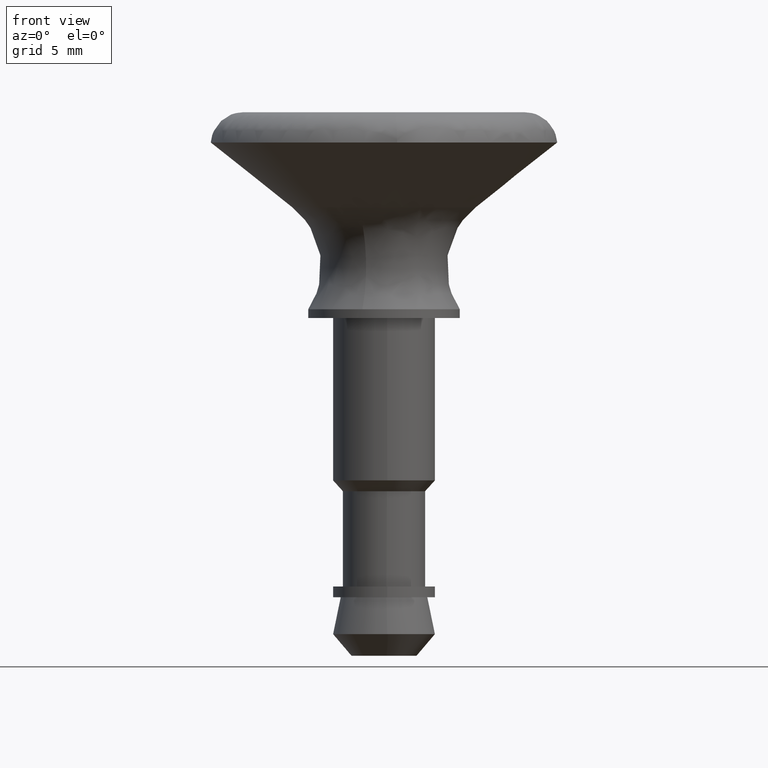
[diagram: clean part render]
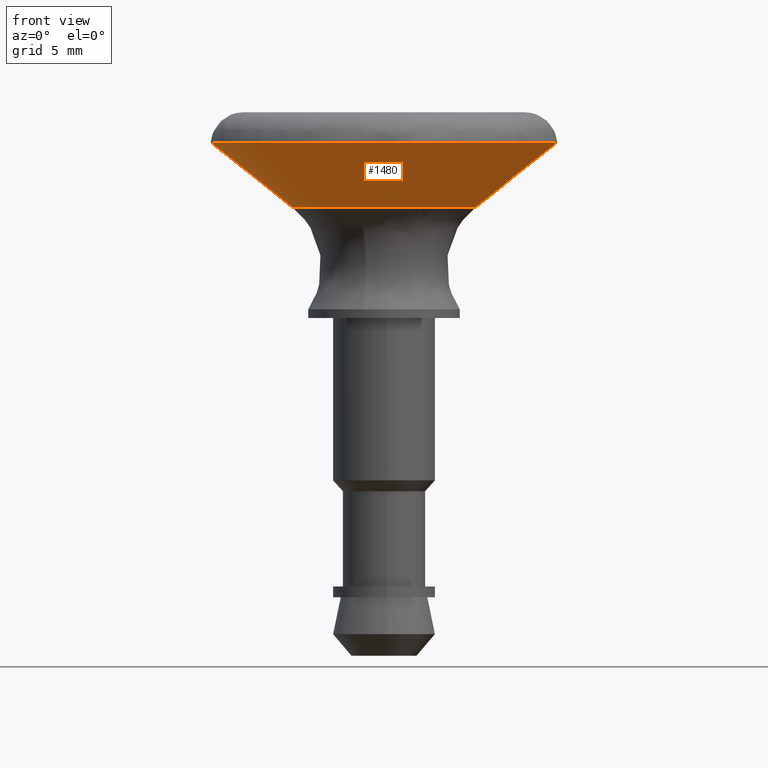
[diagram: same view with one face highlighted and labeled with its STEP entity id]
A machine part, front view. The second image highlights one B-rep face of the part: STEP entity #1480.
In plain terms, the highlighted face is a freeform B-spline surface patch.
Its self-contained STEP definition (entity closure, byte-faithful):
#1284=CARTESIAN_POINT('',(-2.296669949022046,3.429580034845905,5.023911568509607));
#1285=CARTESIAN_POINT('',(-3.921164239081947,2.341712954786316,5.023911568509607));
#1286=CARTESIAN_POINT('',(-4.108552771645339,0.395608635851089,5.023911568509607));
#1287=CARTESIAN_POINT('',(-4.504161407496427,-3.712944135794250,5.023911568509607));
#1288=CARTESIAN_POINT('',(-0.395608635851089,-4.108552771645339,5.023911568509607));
#1289=CARTESIAN_POINT('',(3.712944135794250,-4.504161407496427,5.023911568509607));
#1290=CARTESIAN_POINT('',(4.108552771645339,-0.395608635851089,5.023911568509607));
#1291=CARTESIAN_POINT('',(4.504161407496427,3.712944135794250,5.023911568509607));
#1292=CARTESIAN_POINT('',(0.395608635851089,4.108552771645339,5.023911568509607));
#1293=CARTESIAN_POINT('',(-4.505139370939478,6.727451651183671,8.179502899332231));
#1294=CARTESIAN_POINT('',(-7.691741428031571,4.593495566282425,8.179502899332231));
#1295=CARTESIAN_POINT('',(-8.059322088053438,0.776024452976065,8.179502899332231));
#1296=CARTESIAN_POINT('',(-8.835346541029503,-7.283297635077373,8.179502899332231));
#1297=CARTESIAN_POINT('',(-0.776024452976065,-8.059322088053438,8.179502899332231));
#1298=CARTESIAN_POINT('',(7.283297635077373,-8.835346541029503,8.179502899332231));
#1299=CARTESIAN_POINT('',(8.059322088053438,-0.776024452976065,8.179502899332231));
#1300=CARTESIAN_POINT('',(8.835346541029503,7.283297635077373,8.179502899332231));
#1301=CARTESIAN_POINT('',(0.776024452976065,8.059322088053438,8.179502899332231));
#1309=(BOUNDED_SURFACE()B_SPLINE_SURFACE(2,1,((#1284,#1293),(#1285,#1294),(#1286,#1295),(#1287,#1296),(#1288,#1297),(#1289,#1298),(#1290,#1299),(#1291,#1300),(#1292,#1301)),.UNSPECIFIED.,.F.,.F.,.U.)B_SPLINE_SURFACE_WITH_KNOTS((3,2,2,2,3),(2,2),(0.0,7.512333641672550,20.927215144659250,34.342096647645953,47.756978150632641),(0.0,5.070606574420214),.UNSPECIFIED.)GEOMETRIC_REPRESENTATION_ITEM()RATIONAL_B_SPLINE_SURFACE(((0.855662221768731,0.855662221768731),(0.835979797464467,0.835979797464467),(1.0,1.0),(0.707106781186548,0.707106781186548),(1.0,1.0),(0.707106781186548,0.707106781186548),(1.0,1.0),(0.707106781186548,0.707106781186548),(1.0,1.0)))REPRESENTATION_ITEM('')SURFACE());
#1310=CARTESIAN_POINT('',(-3.774731242995889,1.891213378364719,5.098999999939057));
#1311=VERTEX_POINT('',#1310);
#1312=CARTESIAN_POINT('',(-2.349221273785133,3.508054076917791,5.098999999980581));
#1313=VERTEX_POINT('',#1312);
#1314=CARTESIAN_POINT('',(-3.774731242995889,1.891213378364719,5.098999999939057));
#1315=CARTESIAN_POINT('',(-3.275414706615211,2.887814688231312,5.098999999965026));
#1316=CARTESIAN_POINT('',(-2.349221273785133,3.508054076917791,5.098999999980581));
#1324=(BOUNDED_CURVE()B_SPLINE_CURVE(2,(#1314,#1315,#1316),.UNSPECIFIED.,.F.,.U.)B_SPLINE_CURVE_WITH_KNOTS((3,3),(0.076154610387945,0.154565963839794),.UNSPECIFIED.)CURVE()GEOMETRIC_REPRESENTATION_ITEM()RATIONAL_B_SPLINE_CURVE((0.875915174754849,0.840017871536809,0.861746398575290))REPRESENTATION_ITEM(''));
#1325=EDGE_CURVE('',#1311,#1313,#1324,.T.);
#1326=ORIENTED_EDGE('',*,*,#1325,.F.);
#1327=CARTESIAN_POINT('',(-4.222000000000000,0.0,5.098999999999791));
#1328=VERTEX_POINT('',#1327);
#1329=CARTESIAN_POINT('',(-4.222000000000000,0.0,5.098999999999791));
#1330=CARTESIAN_POINT('',(-4.222000000000002,0.998495840495915,5.098999999999792));
#1331=CARTESIAN_POINT('',(-3.774731242995889,1.891213378364719,5.098999999939057));
#1339=(BOUNDED_CURVE()B_SPLINE_CURVE(2,(#1329,#1330,#1331),.UNSPECIFIED.,.F.,.U.)B_SPLINE_CURVE_WITH_KNOTS((3,3),(0.0,0.076154610387945),.UNSPECIFIED.)CURVE()GEOMETRIC_REPRESENTATION_ITEM()RATIONAL_B_SPLINE_CURVE((1.0,0.910779324143961,0.875915174754849))REPRESENTATION_ITEM(''));
#1340=EDGE_CURVE('',#1328,#1311,#1339,.T.);
#1341=ORIENTED_EDGE('',*,*,#1340,.F.);
#1342=CARTESIAN_POINT('',(-1.203351326187270,-4.046878993161892,5.098999999955693));
#1343=VERTEX_POINT('',#1342);
#1344=CARTESIAN_POINT('',(-1.203351326187270,-4.046878993161892,5.098999999955693));
#1345=CARTESIAN_POINT('',(-4.222000000000000,-3.149274965215932,5.098999999999791));
#1346=CARTESIAN_POINT('',(-4.222000000000000,0.0,5.098999999999791));
#1354=(BOUNDED_CURVE()B_SPLINE_CURVE(2,(#1344,#1345,#1346),.UNSPECIFIED.,.F.,.U.)B_SPLINE_CURVE_WITH_KNOTS((3,3),(0.798526662068842,1.0),.UNSPECIFIED.)CURVE()GEOMETRIC_REPRESENTATION_ITEM()RATIONAL_B_SPLINE_CURVE((0.908365862584212,0.763959302193011,1.0))REPRESENTATION_ITEM(''));
#1355=EDGE_CURVE('',#1343,#1328,#1354,.T.);
#1356=ORIENTED_EDGE('',*,*,#1355,.F.);
#1357=CARTESIAN_POINT('',(4.222000000000000,0.0,5.098999999999791));
#1358=VERTEX_POINT('',#1357);
#1359=CARTESIAN_POINT('',(4.222000000000000,0.0,5.098999999999791));
#1360=CARTESIAN_POINT('',(4.222000000000001,-4.222000000000001,5.098999999999790));
#1361=CARTESIAN_POINT('',(0.0,-4.222000000000000,5.098999999999791));
#1362=CARTESIAN_POINT('',(-0.614418145874408,-4.222000000000000,5.098999999999791));
#1363=CARTESIAN_POINT('',(-1.203351326187270,-4.046878993161891,5.098999999955693));
#1371=(BOUNDED_CURVE()B_SPLINE_CURVE(2,(#1359,#1360,#1361,#1362,#1363),.UNSPECIFIED.,.F.,.U.)B_SPLINE_CURVE_WITH_KNOTS((3,2,3),(0.500000000000000,0.750000000000000,0.798526662068843),.UNSPECIFIED.)CURVE()GEOMETRIC_REPRESENTATION_ITEM()RATIONAL_B_SPLINE_CURVE((1.0,0.707106781186547,1.0,0.943147478993535,0.908365862584211))REPRESENTATION_ITEM(''));
#1372=EDGE_CURVE('',#1358,#1343,#1371,.T.);
#1373=ORIENTED_EDGE('',*,*,#1372,.F.);
#1374=CARTESIAN_POINT('',(0.404660767240389,4.202562749510173,5.099000000010536));
#1375=VERTEX_POINT('',#1374);
#1376=CARTESIAN_POINT('',(0.404660767240389,4.202562749510173,5.099000000010536));
#1377=CARTESIAN_POINT('',(4.222000000000000,3.834994787946072,5.098999999999790));
#1378=CARTESIAN_POINT('',(4.222000000000000,0.0,5.098999999999791));
#1386=(BOUNDED_CURVE()B_SPLINE_CURVE(2,(#1376,#1377,#1378),.UNSPECIFIED.,.F.,.U.)B_SPLINE_CURVE_WITH_KNOTS((3,3),(0.266651095242561,0.500000000000000),.UNSPECIFIED.)CURVE()GEOMETRIC_REPRESENTATION_ITEM()RATIONAL_B_SPLINE_CURVE((0.963582689676505,0.726614752716000,1.0))REPRESENTATION_ITEM(''));
#1387=EDGE_CURVE('',#1375,#1358,#1386,.T.);
#1388=ORIENTED_EDGE('',*,*,#1387,.F.);
#1389=CARTESIAN_POINT('',(0.766746014187233,7.962961816904434,8.102537222125900));
#1390=VERTEX_POINT('',#1389);
#1391=CARTESIAN_POINT('',(0.404660767240389,4.202562749510173,5.099000000010536));
#1392=CARTESIAN_POINT('',(0.766746014187233,7.962961816904434,8.102537222125900));
#1393=QUASI_UNIFORM_CURVE('',1,(#1391,#1392),.UNSPECIFIED.,.F.,.U.);
#1394=EDGE_CURVE('',#1375,#1390,#1393,.T.);
#1395=ORIENTED_EDGE('',*,*,#1394,.T.);
#1396=CARTESIAN_POINT('',(7.977063061677898,0.602598721049658,8.102537257117039));
#1397=VERTEX_POINT('',#1396);
#1398=CARTESIAN_POINT('',(0.766746014187233,7.962961816904434,8.102537222125900));
#1399=CARTESIAN_POINT('',(7.469807547423430,7.317530401758615,8.102537225243232));
#1400=CARTESIAN_POINT('',(7.977063061677898,0.602598721049658,8.102537257117039));
#1408=(BOUNDED_CURVE()B_SPLINE_CURVE(2,(#1398,#1399,#1400),.UNSPECIFIED.,.F.,.U.)B_SPLINE_CURVE_WITH_KNOTS((3,3),(0.266651095234986,0.486870159260233),.UNSPECIFIED.)CURVE()GEOMETRIC_REPRESENTATION_ITEM()RATIONAL_B_SPLINE_CURVE((0.963582689691889,0.739948225500470,0.970850634522784))REPRESENTATION_ITEM(''));
#1409=EDGE_CURVE('',#1390,#1397,#1408,.T.);
#1410=ORIENTED_EDGE('',*,*,#1409,.T.);
#1411=CARTESIAN_POINT('',(7.999791268970030,0.0,8.102537222004742));
#1412=VERTEX_POINT('',#1411);
#1413=CARTESIAN_POINT('',(7.977063061677898,0.602598721049658,8.102537257117039));
#1414=CARTESIAN_POINT('',(7.999791268970030,0.301727980283217,8.102537222004742));
#1415=CARTESIAN_POINT('',(7.999791268970030,0.0,8.102537222004742));
#1423=(BOUNDED_CURVE()B_SPLINE_CURVE(2,(#1413,#1414,#1415),.UNSPECIFIED.,.F.,.U.)B_SPLINE_CURVE_WITH_KNOTS((3,3),(0.486870159260233,0.500000000000000),.UNSPECIFIED.)CURVE()GEOMETRIC_REPRESENTATION_ITEM()RATIONAL_B_SPLINE_CURVE((0.970850634522784,0.984617434732887,1.0))REPRESENTATION_ITEM(''));
#1424=EDGE_CURVE('',#1397,#1412,#1423,.T.);
#1425=ORIENTED_EDGE('',*,*,#1424,.T.);
#1426=CARTESIAN_POINT('',(0.602598721049395,-7.977063061677919,8.102537257117046));
#1427=VERTEX_POINT('',#1426);
#1428=CARTESIAN_POINT('',(7.999791268970030,0.0,8.102537222004742));
#1429=CARTESIAN_POINT('',(7.999791268970030,-7.418268588651327,8.102537222004742));
#1430=CARTESIAN_POINT('',(0.602598721049395,-7.977063061677919,8.102537257117046));
#1438=(BOUNDED_CURVE()B_SPLINE_CURVE(2,(#1428,#1429,#1430),.UNSPECIFIED.,.F.,.U.)B_SPLINE_CURVE_WITH_KNOTS((3,3),(0.500000000000000,0.736870159260245),.UNSPECIFIED.)CURVE()GEOMETRIC_REPRESENTATION_ITEM()RATIONAL_B_SPLINE_CURVE((1.0,0.722489346453647,0.970850634522809))REPRESENTATION_ITEM(''));
#1439=EDGE_CURVE('',#1412,#1427,#1438,.T.);
#1440=ORIENTED_EDGE('',*,*,#1439,.T.);
#1441=CARTESIAN_POINT('',(-7.999791268970030,0.0,8.102537222004742));
#1442=VERTEX_POINT('',#1441);
#1443=CARTESIAN_POINT('',(0.602598721049395,-7.977063061677919,8.102537257117046));
#1444=CARTESIAN_POINT('',(0.301727980282953,-7.999791268970030,8.102537222004743));
#1445=CARTESIAN_POINT('',(0.0,-7.999791268970030,8.102537222004742));
#1446=CARTESIAN_POINT('',(-7.999791268970030,-7.999791268970030,8.102537222004742));
#1447=CARTESIAN_POINT('',(-7.999791268970030,0.0,8.102537222004742));
#1455=(BOUNDED_CURVE()B_SPLINE_CURVE(2,(#1443,#1444,#1445,#1446,#1447),.UNSPECIFIED.,.F.,.U.)B_SPLINE_CURVE_WITH_KNOTS((3,2,3),(0.736870159260245,0.750000000000000,1.0),.UNSPECIFIED.)CURVE()GEOMETRIC_REPRESENTATION_ITEM()RATIONAL_B_SPLINE_CURVE((0.970850634522808,0.984617434732900,1.0,0.707106781186547,1.0))REPRESENTATION_ITEM(''));
#1456=EDGE_CURVE('',#1427,#1442,#1455,.T.);
#1457=ORIENTED_EDGE('',*,*,#1456,.T.);
#1458=CARTESIAN_POINT('',(-4.451274238522982,6.647015721401498,8.102537222005136));
#1459=VERTEX_POINT('',#1458);
#1460=CARTESIAN_POINT('',(-7.999791268970030,0.0,8.102537222004742));
#1461=CARTESIAN_POINT('',(-7.999791268970030,4.270697821057120,8.102537222004742));
#1462=CARTESIAN_POINT('',(-4.451274238522982,6.647015721401498,8.102537222005136));
#1470=(BOUNDED_CURVE()B_SPLINE_CURVE(2,(#1460,#1461,#1462),.UNSPECIFIED.,.F.,.U.)B_SPLINE_CURVE_WITH_KNOTS((3,3),(0.0,0.154565963839577),.UNSPECIFIED.)CURVE()GEOMETRIC_REPRESENTATION_ITEM()RATIONAL_B_SPLINE_CURVE((1.0,0.818914709328090,0.861746398575170))REPRESENTATION_ITEM(''));
#1471=EDGE_CURVE('',#1442,#1459,#1470,.T.);
#1472=ORIENTED_EDGE('',*,*,#1471,.T.);
#1473=CARTESIAN_POINT('',(-2.349221273785133,3.508054076917791,5.098999999980581));
#1474=CARTESIAN_POINT('',(-4.451274238522982,6.647015721401498,8.102537222005136));
#1475=QUASI_UNIFORM_CURVE('',1,(#1473,#1474),.UNSPECIFIED.,.F.,.U.);
#1476=EDGE_CURVE('',#1313,#1459,#1475,.T.);
#1477=ORIENTED_EDGE('',*,*,#1476,.F.);
#1478=EDGE_LOOP('',(#1326,#1341,#1356,#1373,#1388,#1395,#1410,#1425,#1440,#1457,#1472,#1477));
#1479=FACE_OUTER_BOUND('',#1478,.T.);
#1480=ADVANCED_FACE('',(#1479),#1309,.T.);